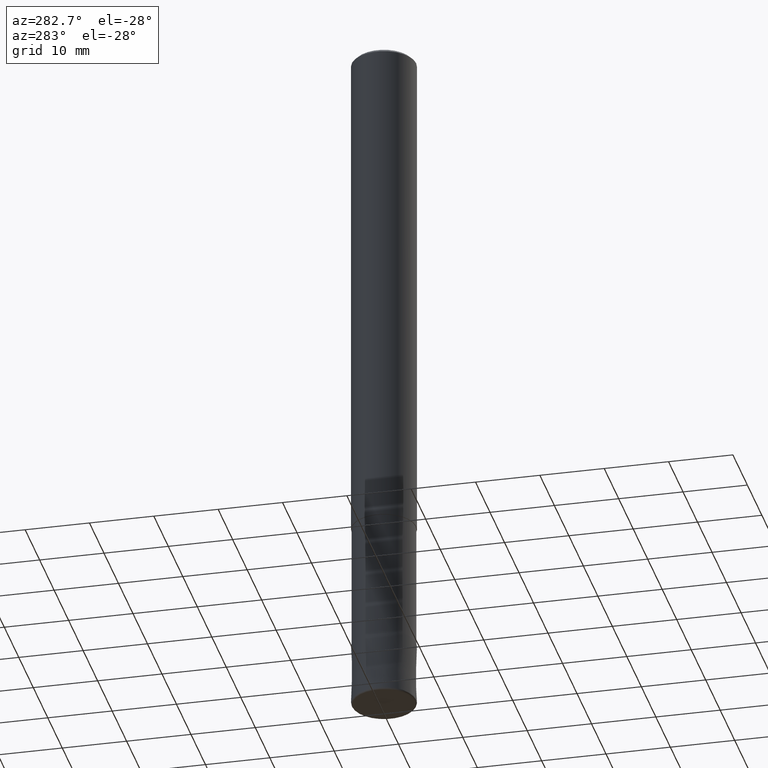
[diagram: clean part render]
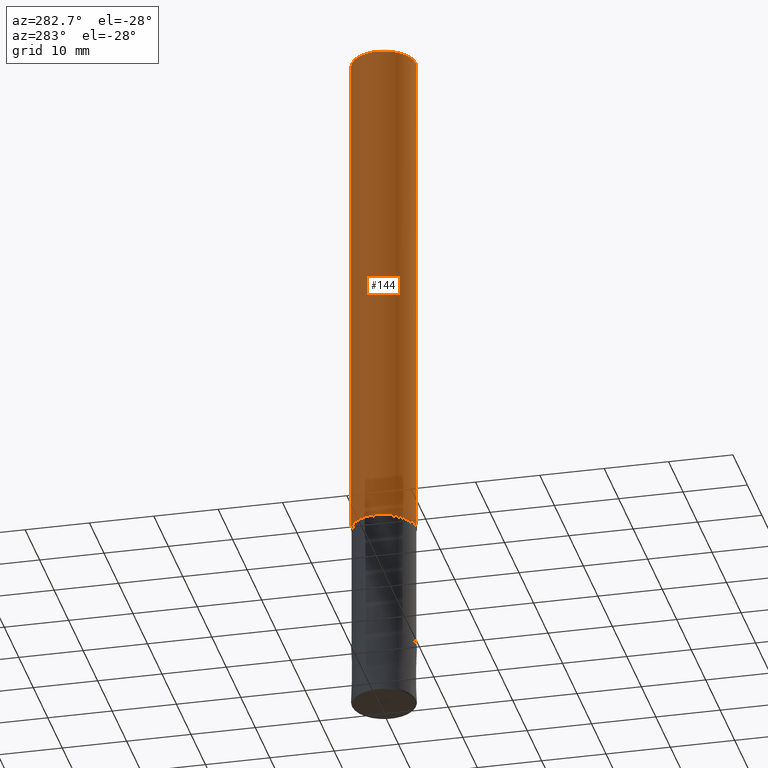
[diagram: same view with one face highlighted and labeled with its STEP entity id]
A machine part, auxiliary view. The second image highlights one B-rep face of the part: STEP entity #144.
In plain terms, the highlighted cylindrical surface (edge-blend (fillet) strip) has radius 5 mm, axis along (-0, -0, 1).
Its self-contained STEP definition (entity closure, byte-faithful):
#100=EDGE_CURVE('',#104,#182,#237,.T.);
#104=VERTEX_POINT('',#241);
#126=VERTEX_POINT('',#266);
#138=EDGE_CURVE('',#104,#126,#279,.T.);
#144=ADVANCED_FACE('',(#285),#286,.T.);
#154=VERTEX_POINT('',#300);
#156=EDGE_CURVE('',#126,#154,#302,.T.);
#160=EDGE_CURVE('',#154,#182,#306,.T.);
#182=VERTEX_POINT('',#330);
#237=CIRCLE('',#385,5.0);
#241=CARTESIAN_POINT('',(6.12303176911189E-016,-5.0,-80.0));
#266=CARTESIAN_POINT('',(6.12303176911189E-016,-5.0,-0.5));
#279=LINE('',#437,#438);
#285=FACE_OUTER_BOUND('',#445,.T.);
#286=CYLINDRICAL_SURFACE('',#446,5.0);
#300=CARTESIAN_POINT('',(0.0,5.0,-0.5));
#302=CIRCLE('',#463,5.0);
#306=LINE('',#468,#469);
#330=CARTESIAN_POINT('',(0.0,5.0,-80.0));
#385=AXIS2_PLACEMENT_3D('',#546,#547,#548);
#437=CARTESIAN_POINT('',(6.12303176911189E-016,-5.0,-40.25));
#438=VECTOR('',#596,1.0);
#445=EDGE_LOOP('',(#601,#602,#603,#604));
#446=AXIS2_PLACEMENT_3D('',#605,#606,#607);
#463=AXIS2_PLACEMENT_3D('',#638,#639,#640);
#468=CARTESIAN_POINT('',(-6.12303176911189E-016,5.0,-40.25));
#469=VECTOR('',#641,1.0);
#546=CARTESIAN_POINT('',(0.0,0.0,-80.0));
#547=DIRECTION('',(0.0,0.0,-1.0));
#548=DIRECTION('',(0.0,1.0,0.0));
#596=DIRECTION('',(-0.0,-0.0,1.0));
#601=ORIENTED_EDGE('',*,*,#160,.T.);
#602=ORIENTED_EDGE('',*,*,#100,.F.);
#603=ORIENTED_EDGE('',*,*,#138,.T.);
#604=ORIENTED_EDGE('',*,*,#156,.T.);
#605=CARTESIAN_POINT('',(0.0,0.0,-40.25));
#606=DIRECTION('',(-0.0,-0.0,1.0));
#607=DIRECTION('',(0.0,1.0,0.0));
#638=CARTESIAN_POINT('',(0.0,0.0,-0.5));
#639=DIRECTION('',(0.0,0.0,-1.0));
#640=DIRECTION('',(0.0,1.0,0.0));
#641=DIRECTION('',(0.0,0.0,-1.0));